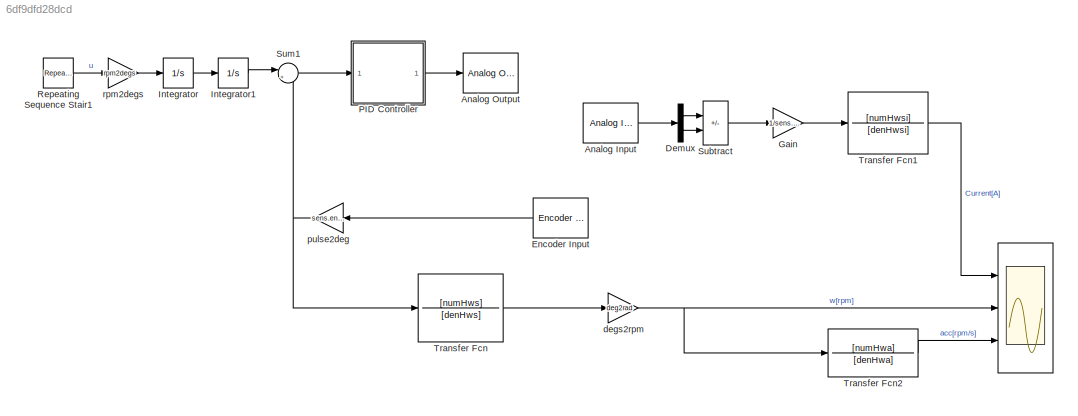
MODEL slx_6df9dfd28dcd
KIND model
CONFIG AbsTol = auto
CONFIG EnableMultiTasking = off
CONFIG FixedStep = 0.001
CONFIG MaxStep = auto
CONFIG MinStep = auto
CONFIG RelTol = 1e-3
CONFIG SampleTimeConstraint = Unconstrained
CONFIG SolverName = ode3
CONFIG StartTime = 0.0
CONFIG StopTime = 20
BLOCK [Scope]  
  Floating = off
  NumInputPorts = 3
  Ports = [3]
  ScopeSpecificationString = Simulink.scopes.TimeScopeBlockCfg('CurrentConfiguration', extmgr.ConfigurationSet(extmgr.Configuration('Core','General UI',true),extmgr.Configuration('Core','Source UI',true),extmgr.Configuration('Sources','WiredSimulink',true,'DataLoggingVariableName','MotorData','DataLogging',true,'DataLoggingSaveFormat','StructureWithTime'),extmgr.Configuration('Visuals','Time Domain',true,'SerializedDisplays',...<+1496ch>
BLOCK [Reference] Analog Input  REF=sldrtlib/Analog Input
  AttributesFormatString = National Instruments\nPCI-6221 [auto]
  Ports = [0, 1]
  SourceBlock = sldrtlib/Analog Input
  SourceProductBaseCode = WT
  SourceType = Simulink Desktop Real-Time Analog Input
BLOCK [Reference] Analog Output  REF=sldrtlib/Analog Output
  AttributesFormatString = National Instruments\nPCI-6221 [auto]
  Ports = [1]
  SourceBlock = sldrtlib/Analog Output
  SourceProductBaseCode = WT
  SourceType = Simulink Desktop Real-Time Analog Output
BLOCK [Demux] Demux
  Outputs = 2
  Ports = [1, 2]
BLOCK [Reference] Encoder Input  REF=sldrtlib/Encoder Input
  AttributesFormatString = National Instruments\nPCI-6221 [auto]
  Ports = [0, 1]
  SourceBlock = sldrtlib/Encoder Input
  SourceProductBaseCode = WT
  SourceType = Simulink Desktop Real-Time Encoder Input
BLOCK [Gain] Gain
  Gain = 1/sens.curr.Rs
BLOCK [Integrator] Integrator
  Ports = [1, 1]
BLOCK [Integrator] Integrator1
  Ports = [1, 1]
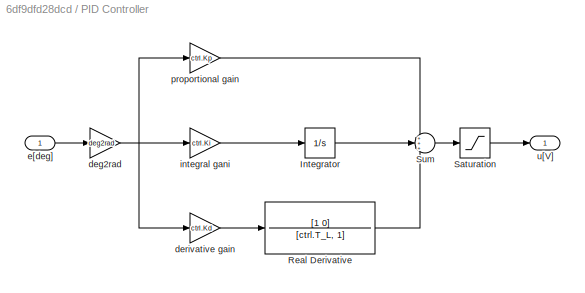
BLOCK [SubSystem] PID Controller
  Ports = [1, 1]
  RequestExecContextInheritance = off
BLOCK [Integrator] PID Controller/Integrator
  Ports = [1, 1]
BLOCK [TransferFcn] PID Controller/Real Derivative
  Denominator = [ctrl.T_L, 1]
  Numerator = [1 0]
BLOCK [Saturate] PID Controller/Saturation
  LowerLimit = -drv.outmax
  UpperLimit = drv.outmax
BLOCK [Sum] PID Controller/Sum
  Inputs = +++
  Ports = [3, 1]
BLOCK [Gain] PID Controller/deg2rad
  Gain = deg2rad
BLOCK [Gain] PID Controller/derivative gain
  Gain = ctrl.Kd
BLOCK [Inport] PID Controller/e[deg]
BLOCK [Gain] PID Controller/integral gani
  Gain = ctrl.Ki
BLOCK [Gain] PID Controller/proportional gain
  Gain = ctrl.Kp
BLOCK [Outport] PID Controller/u[V]
BLOCK [Reference] Repeating Sequence Stair1  REF=simulink/Sources/Repeating
Sequence
Stair
  Ports = [0, 1]
  SourceBlock = simulink/Sources/Repeating\nSequence\nStair
  SourceProductBaseCode = SL
  SourceType = Repeating Sequence Stair
BLOCK [Sum] Subtract
  IconShape = rectangular
  Inputs = +-
  Ports = [2, 1]
BLOCK [Sum] Sum1
  Inputs = |+-
  Ports = [2, 1]
BLOCK [TransferFcn] Transfer Fcn
  Denominator = [denHws]
  Numerator = [numHws]
BLOCK [TransferFcn] Transfer Fcn1
  Denominator = [denHwsi]
  Numerator = [numHwsi]
BLOCK [TransferFcn] Transfer Fcn2
  Denominator = [denHwa]
  Numerator = [numHwa]
BLOCK [Gain] degs2rpm
  Gain = deg2rad
BLOCK [Gain] pulse2deg
  Gain = sens.enc.pulse2deg
BLOCK [Gain] rpm2degs
  Gain = rpm2degs
LINE Analog Input:1 -> Demux:1
LINE Demux:1 -> Subtract:1
LINE Demux:2 -> Subtract:2
LINE Encoder Input:1 -> pulse2deg:1
LINE Gain:1 -> Transfer Fcn1:1
LINE Integrator1:1 -> Sum1:1
LINE Integrator:1 -> Integrator1:1
LINE PID Controller/Integrator:1 -> PID Controller/Sum:2
LINE PID Controller/Real Derivative:1 -> PID Controller/Sum:3
LINE PID Controller/Saturation:1 -> PID Controller/u[V]:1
LINE PID Controller/Sum:1 -> PID Controller/Saturation:1
NET PID Controller/deg2rad:1 -> PID Controller/derivative gain:1, PID Controller/integral gani:1, PID Controller/proportional gain:1
LINE PID Controller/derivative gain:1 -> PID Controller/Real Derivative:1
LINE PID Controller/e[deg]:1 -> PID Controller/deg2rad:1
LINE PID Controller/integral gani:1 -> PID Controller/Integrator:1
LINE PID Controller/proportional gain:1 -> PID Controller/Sum:1
LINE PID Controller:1 -> Analog Output:1
LINE Repeating Sequence Stair1:1 -> rpm2degs:1
LINE Subtract:1 -> Gain:1
LINE Sum1:1 -> PID Controller:1
LINE Transfer Fcn1:1 ->  :1
LINE Transfer Fcn2:1 ->  :3
LINE Transfer Fcn:1 -> degs2rpm:1
NET degs2rpm:1 ->  :2, Transfer Fcn2:1
NET pulse2deg:1 -> Sum1:2, Transfer Fcn:1
LINE rpm2degs:1 -> Integrator:1
note: NET lines group one-source signal fan-out (src -> all destinations, sorted); 1:1 wires keep LINE
